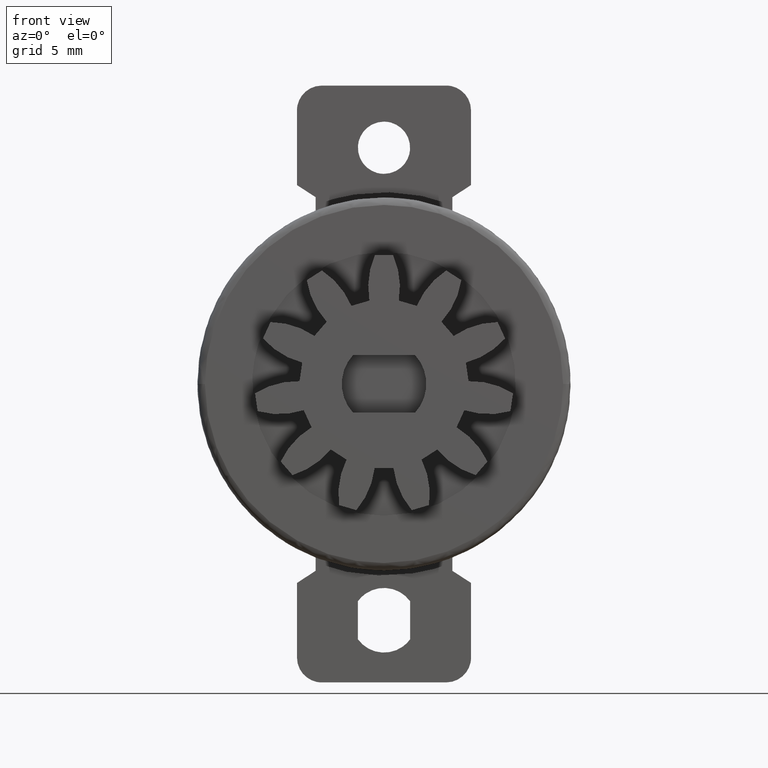
[diagram: clean part render]
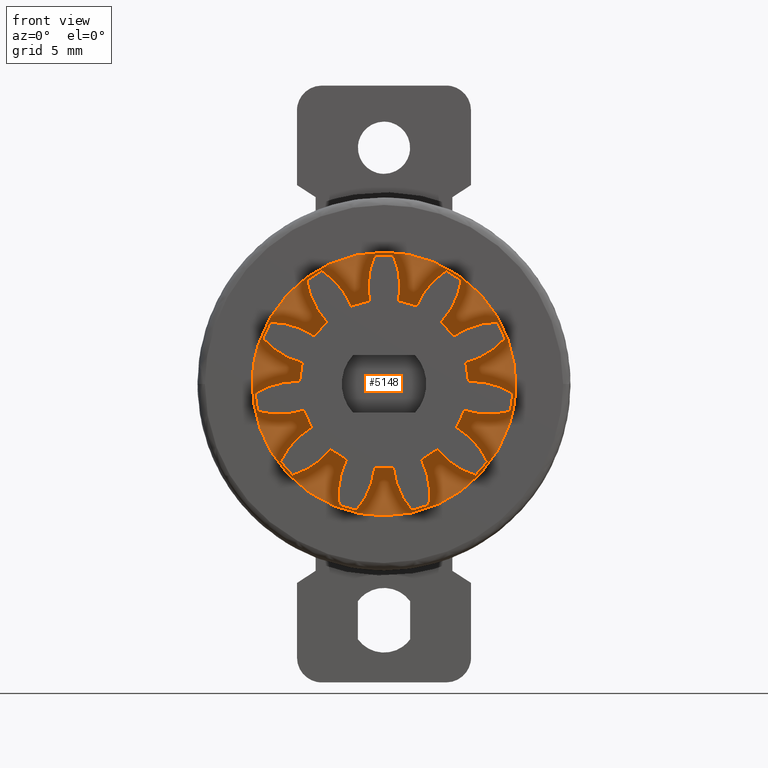
[diagram: same view with one face highlighted and labeled with its STEP entity id]
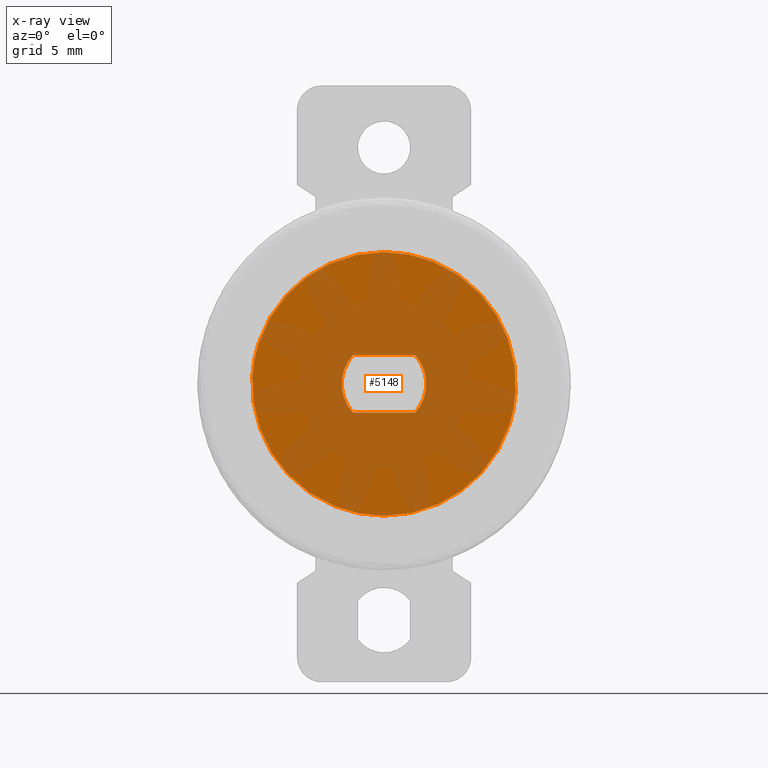
[diagram: x-ray of the same camera — body ghosted, the highlighted face saturated]
A machine part, front view. The second image highlights one B-rep face of the part: STEP entity #5148.
The next image is the same camera in x-ray: the body ghosted, the highlighted face saturated — about 64% of this face is hidden behind the body in this view.
In plain terms, the highlighted face is a freeform B-spline surface patch.
Its self-contained STEP definition (entity closure, byte-faithful):
#4855=CARTESIAN_POINT('',(5.290114940728019,-3.200000000000000,-0.323548935737131));
#4856=VERTEX_POINT('',#4855);
#4862=CARTESIAN_POINT('',(0.0,-3.200000000000000,-5.300000000000000));
#4863=VERTEX_POINT('',#4862);
#4864=CARTESIAN_POINT('',(0.0,-3.200000000000000,-5.300000000000000));
#4865=CARTESIAN_POINT('',(4.985750014140785,-3.199999999999999,-5.299999999999798));
#4866=CARTESIAN_POINT('',(5.290114940728019,-3.200000000000001,-0.323548935737131));
#4874=(BOUNDED_CURVE()B_SPLINE_CURVE(2,(#4864,#4865,#4866),.UNSPECIFIED.,.F.,.U.)B_SPLINE_CURVE_WITH_KNOTS((3,3),(0.500000000000000,0.739333233737957),.UNSPECIFIED.)CURVE()GEOMETRIC_REPRESENTATION_ITEM()RATIONAL_B_SPLINE_CURVE((1.0,0.719603675205830,0.976072623541477))REPRESENTATION_ITEM(''));
#4875=EDGE_CURVE('',#4863,#4856,#4874,.T.);
#4877=CARTESIAN_POINT('',(-5.290114940728019,-3.200000000000000,0.323548935737132));
#4878=VERTEX_POINT('',#4877);
#4879=CARTESIAN_POINT('',(-5.290114940728020,-3.200000000000000,0.323548935737132));
#4880=CARTESIAN_POINT('',(-5.299999999993545,-3.200000000000000,0.161925471914264));
#4881=CARTESIAN_POINT('',(-5.299999999993645,-3.200000000000000,-3.887470E-013));
#4882=CARTESIAN_POINT('',(-5.299999999996920,-3.200000000000000,-5.300000000000187));
#4883=CARTESIAN_POINT('',(0.0,-3.200000000000000,-5.300000000000000));
#4891=(BOUNDED_CURVE()B_SPLINE_CURVE(2,(#4879,#4880,#4881,#4882,#4883),.UNSPECIFIED.,.F.,.U.)B_SPLINE_CURVE_WITH_KNOTS((3,2,3),(0.239333233737957,0.250000000000000,0.500000000000000),.UNSPECIFIED.)CURVE()GEOMETRIC_REPRESENTATION_ITEM()RATIONAL_B_SPLINE_CURVE((0.976072623541477,0.987503105980718,1.0,0.707106781186548,1.0))REPRESENTATION_ITEM(''));
#4892=EDGE_CURVE('',#4878,#4863,#4891,.T.);
#4922=CARTESIAN_POINT('',(0.0,-3.200000000000000,5.300000000000000));
#4923=VERTEX_POINT('',#4922);
#4924=CARTESIAN_POINT('',(0.0,-3.200000000000000,5.300000000000000));
#4925=CARTESIAN_POINT('',(-4.985750014140785,-3.199999999999999,5.299999999999798));
#4926=CARTESIAN_POINT('',(-5.290114940728020,-3.200000000000000,0.323548935737132));
#4934=(BOUNDED_CURVE()B_SPLINE_CURVE(2,(#4924,#4925,#4926),.UNSPECIFIED.,.F.,.U.)B_SPLINE_CURVE_WITH_KNOTS((3,3),(0.0,0.239333233737957),.UNSPECIFIED.)CURVE()GEOMETRIC_REPRESENTATION_ITEM()RATIONAL_B_SPLINE_CURVE((1.0,0.719603675205830,0.976072623541477))REPRESENTATION_ITEM(''));
#4935=EDGE_CURVE('',#4923,#4878,#4934,.T.);
#4937=CARTESIAN_POINT('',(5.290114940728019,-3.200000000000001,-0.323548935737131));
#4938=CARTESIAN_POINT('',(5.299999999993545,-3.200000000000000,-0.161925471914263));
#4939=CARTESIAN_POINT('',(5.299999999993644,-3.200000000000000,3.887470E-013));
#4940=CARTESIAN_POINT('',(5.299999999996918,-3.200000000000000,5.300000000000187));
#4941=CARTESIAN_POINT('',(0.0,-3.200000000000000,5.300000000000000));
#4949=(BOUNDED_CURVE()B_SPLINE_CURVE(2,(#4937,#4938,#4939,#4940,#4941),.UNSPECIFIED.,.F.,.U.)B_SPLINE_CURVE_WITH_KNOTS((3,2,3),(0.739333233737957,0.750000000000000,1.0),.UNSPECIFIED.)CURVE()GEOMETRIC_REPRESENTATION_ITEM()RATIONAL_B_SPLINE_CURVE((0.976072623541477,0.987503105980718,1.0,0.707106781186548,1.0))REPRESENTATION_ITEM(''));
#4950=EDGE_CURVE('',#4856,#4923,#4949,.T.);
#5014=CARTESIAN_POINT('',(1.251998402554874,-3.200000000000000,-1.150000000000000));
#5015=VERTEX_POINT('',#5014);
#5016=CARTESIAN_POINT('',(-1.251998402554902,-3.200000000000000,-1.150000000000000));
#5017=VERTEX_POINT('',#5016);
#5018=CARTESIAN_POINT('',(1.251998402554874,-3.200000000000000,-1.150000000000000));
#5019=CARTESIAN_POINT('',(-1.251998402554902,-3.200000000000000,-1.150000000000000));
#5020=QUASI_UNIFORM_CURVE('',1,(#5018,#5019),.UNSPECIFIED.,.F.,.U.);
#5021=EDGE_CURVE('',#5015,#5017,#5020,.T.);
#5051=CARTESIAN_POINT('',(-1.251998402554904,-3.200000000000000,1.150000000000000));
#5052=VERTEX_POINT('',#5051);
#5053=CARTESIAN_POINT('',(-1.251998402554896,-3.200000000000000,-1.149999999999995));
#5054=CARTESIAN_POINT('',(-2.308309654471209,-3.200000000000000,-1.301043E-015));
#5055=CARTESIAN_POINT('',(-1.251998402554898,-3.200000000000000,1.149999999999993));
#5063=(BOUNDED_CURVE()B_SPLINE_CURVE(2,(#5053,#5054,#5055),.UNSPECIFIED.,.F.,.U.)CURVE()GEOMETRIC_REPRESENTATION_ITEM()QUASI_UNIFORM_CURVE()RATIONAL_B_SPLINE_CURVE((1.0,0.736469648561704,1.0))REPRESENTATION_ITEM(''));
#5064=EDGE_CURVE('',#5017,#5052,#5063,.T.);
#5081=CARTESIAN_POINT('',(1.251998402554874,-3.200000000000000,1.150000000000000));
#5082=VERTEX_POINT('',#5081);
#5083=CARTESIAN_POINT('',(-1.251998402554904,-3.200000000000000,1.150000000000000));
#5084=CARTESIAN_POINT('',(1.251998402554874,-3.200000000000000,1.150000000000000));
#5085=QUASI_UNIFORM_CURVE('',1,(#5083,#5084),.UNSPECIFIED.,.F.,.U.);
#5086=EDGE_CURVE('',#5052,#5082,#5085,.T.);
#5112=CARTESIAN_POINT('',(1.251998402554874,-3.200000000000000,1.150000000000000));
#5113=CARTESIAN_POINT('',(2.308309654471234,-3.200000000000001,4.336809E-016));
#5114=CARTESIAN_POINT('',(1.251998402554884,-3.200000000000000,-1.150000000000008));
#5122=(BOUNDED_CURVE()B_SPLINE_CURVE(2,(#5112,#5113,#5114),.UNSPECIFIED.,.F.,.U.)CURVE()GEOMETRIC_REPRESENTATION_ITEM()QUASI_UNIFORM_CURVE()RATIONAL_B_SPLINE_CURVE((1.0,0.736469648561696,1.0))REPRESENTATION_ITEM(''));
#5123=EDGE_CURVE('',#5082,#5015,#5122,.T.);
#5131=CARTESIAN_POINT('',(-5.829339552738719,-3.200000000000000,5.829469979455142));
#5132=CARTESIAN_POINT('',(5.829339363195948,-3.200000000000000,5.829469979455142));
#5133=CARTESIAN_POINT('',(-5.829339552738719,-3.200000000000000,-5.829470263769299));
#5134=CARTESIAN_POINT('',(5.829339363195948,-3.200000000000000,-5.829470263769299));
#5135=B_SPLINE_SURFACE_WITH_KNOTS('',1,1,((#5131,#5133),(#5132,#5134)),.UNSPECIFIED.,.F.,.F.,.U.,(2,2),(2,2),(0.0,11.658678915934670),(0.0,11.658940243224439),.UNSPECIFIED.);
#5136=ORIENTED_EDGE('',*,*,#4935,.T.);
#5137=ORIENTED_EDGE('',*,*,#4892,.T.);
#5138=ORIENTED_EDGE('',*,*,#4875,.T.);
#5139=ORIENTED_EDGE('',*,*,#4950,.T.);
#5140=EDGE_LOOP('',(#5136,#5137,#5138,#5139));
#5141=FACE_OUTER_BOUND('',#5140,.T.);
#5142=ORIENTED_EDGE('',*,*,#5086,.T.);
#5143=ORIENTED_EDGE('',*,*,#5123,.T.);
#5144=ORIENTED_EDGE('',*,*,#5021,.T.);
#5145=ORIENTED_EDGE('',*,*,#5064,.T.);
#5146=EDGE_LOOP('',(#5142,#5143,#5144,#5145));
#5147=FACE_BOUND('',#5146,.T.);
#5148=ADVANCED_FACE('',(#5141,#5147),#5135,.F.);